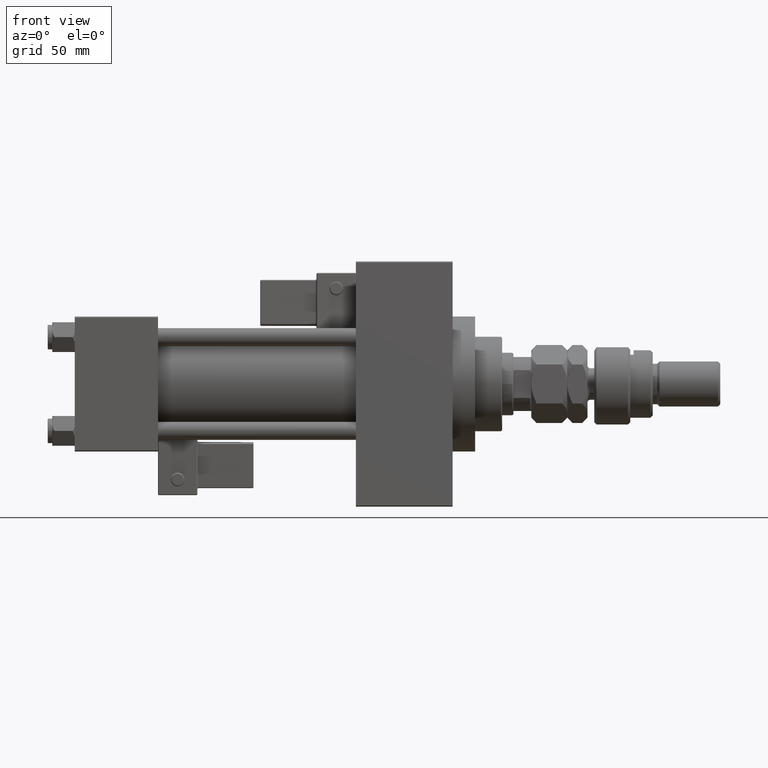
[diagram: clean part render]
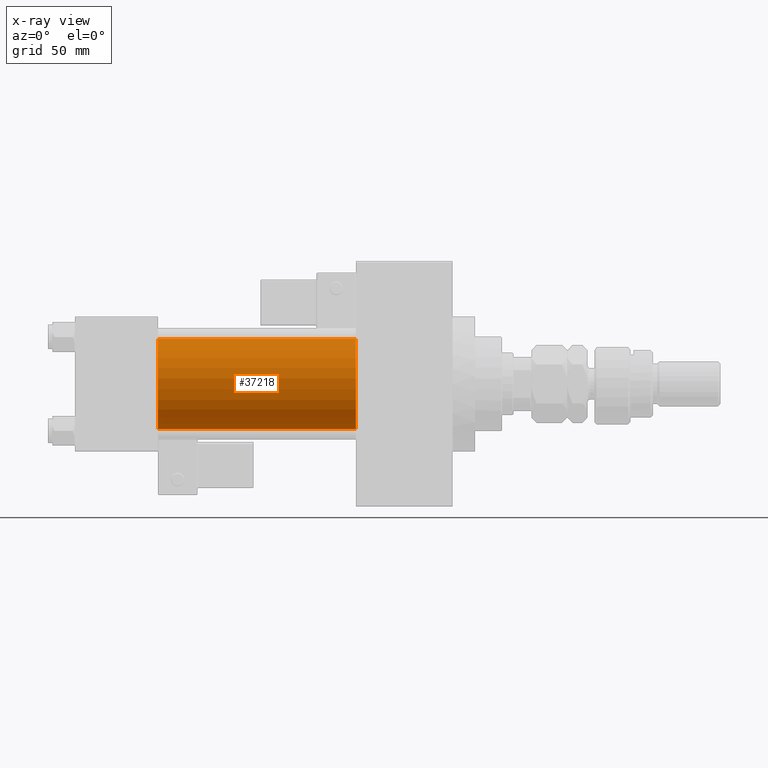
[diagram: x-ray — body ghosted, one internal face saturated and labeled with its STEP entity id]
A machine part, front view, then the same camera in x-ray: the body is ghosted and one INTERNAL B-rep face — a face not visible from any outside direction — is saturated and labeled: STEP entity #37218.
In plain terms, the highlighted cylindrical surface (partial cylindrical patch) has radius 20 mm, axis along (-1, -0, -0).
Its self-contained STEP definition (entity closure, byte-faithful):
#579 = CARTESIAN_POINT ( 'NONE',  ( 37.00000000000000000, -2.602085213965210642E-15, 0.000000000000000000 ) ) ;
#681 = VECTOR ( 'NONE', #16970, 1000.000000000000000 ) ;
#3082 = CARTESIAN_POINT ( 'NONE',  ( 125.0000000000000000, -1.527916156705042519E-16, -20.00000000000000000 ) ) ;
#5220 = EDGE_CURVE ( 'NONE', #29439, #47229, #28258, .T. ) ;
#5348 = CARTESIAN_POINT ( 'NONE',  ( 125.0000000000000000, -1.527916156705042519E-16, -20.00000000000000000 ) ) ;
#6085 = AXIS2_PLACEMENT_3D ( 'NONE', #579, #39228, #47803 ) ;
#6603 = ORIENTED_EDGE ( 'NONE', *, *, #5220, .T. ) ;
#7260 = EDGE_CURVE ( 'NONE', #29439, #31314, #45073, .T. ) ;
#8146 = EDGE_LOOP ( 'NONE', ( #6603, #23381, #37087, #17543 ) ) ;
#11111 = CARTESIAN_POINT ( 'NONE',  ( 125.0000000000000000, -2.602085213965210642E-15, 20.00000000000000000 ) ) ;
#11656 = CYLINDRICAL_SURFACE ( 'NONE', #46721, 20.00000000000000000 ) ;
#12323 = VECTOR ( 'NONE', #19940, 1000.000000000000000 ) ;
#16077 = FACE_OUTER_BOUND ( 'NONE', #8146, .T. ) ;
#16970 = DIRECTION ( 'NONE',  ( -1.000000000000000000, -0.000000000000000000, -0.000000000000000000 ) ) ;
#17543 = ORIENTED_EDGE ( 'NONE', *, *, #7260, .F. ) ;
#19940 = DIRECTION ( 'NONE',  ( -1.000000000000000000, -0.000000000000000000, -0.000000000000000000 ) ) ;
#19947 = DIRECTION ( 'NONE',  ( -1.000000000000000000, -0.000000000000000000, -0.000000000000000000 ) ) ;
#20432 = VERTEX_POINT ( 'NONE', #43161 ) ;
#20463 = EDGE_CURVE ( 'NONE', #47229, #20432, #34887, .T. ) ;
#22499 = EDGE_CURVE ( 'NONE', #31314, #20432, #43117, .T. ) ;
#22608 = CARTESIAN_POINT ( 'NONE',  ( 125.0000000000000000, -2.602085213965210642E-15, 0.000000000000000000 ) ) ;
#23381 = ORIENTED_EDGE ( 'NONE', *, *, #20463, .T. ) ;
#28258 = CIRCLE ( 'NONE', #30860, 20.00000000000000000 ) ;
#29439 = VERTEX_POINT ( 'NONE', #32607 ) ;
#30860 = AXIS2_PLACEMENT_3D ( 'NONE', #22608, #43591, #31721 ) ;
#31314 = VERTEX_POINT ( 'NONE', #48972 ) ;
#31721 = DIRECTION ( 'NONE',  ( 0.000000000000000000, 0.000000000000000000, -1.000000000000000000 ) ) ;
#32607 = CARTESIAN_POINT ( 'NONE',  ( 125.0000000000000000, -2.602085213965210642E-15, 20.00000000000000000 ) ) ;
#34887 = LINE ( 'NONE', #5348, #681 ) ;
#37087 = ORIENTED_EDGE ( 'NONE', *, *, #22499, .F. ) ;
#37218 = ADVANCED_FACE ( 'NONE', ( #16077 ), #11656, .F. ) ;
#37334 = CARTESIAN_POINT ( 'NONE',  ( 125.0000000000000000, -2.602085213965210642E-15, 0.000000000000000000 ) ) ;
#39228 = DIRECTION ( 'NONE',  ( 1.000000000000000000, 0.000000000000000000, 0.000000000000000000 ) ) ;
#41467 = DIRECTION ( 'NONE',  ( 0.000000000000000000, 0.000000000000000000, 1.000000000000000000 ) ) ;
#43117 = CIRCLE ( 'NONE', #6085, 20.00000000000000000 ) ;
#43161 = CARTESIAN_POINT ( 'NONE',  ( 37.00000000000000000, -1.527916156705042519E-16, -20.00000000000000000 ) ) ;
#43591 = DIRECTION ( 'NONE',  ( 1.000000000000000000, 0.000000000000000000, 0.000000000000000000 ) ) ;
#45073 = LINE ( 'NONE', #11111, #12323 ) ;
#46721 = AXIS2_PLACEMENT_3D ( 'NONE', #37334, #19947, #41467 ) ;
#47229 = VERTEX_POINT ( 'NONE', #3082 ) ;
#47803 = DIRECTION ( 'NONE',  ( 0.000000000000000000, 0.000000000000000000, -1.000000000000000000 ) ) ;
#48972 = CARTESIAN_POINT ( 'NONE',  ( 37.00000000000000000, -2.602085213965210642E-15, 20.00000000000000000 ) ) ;